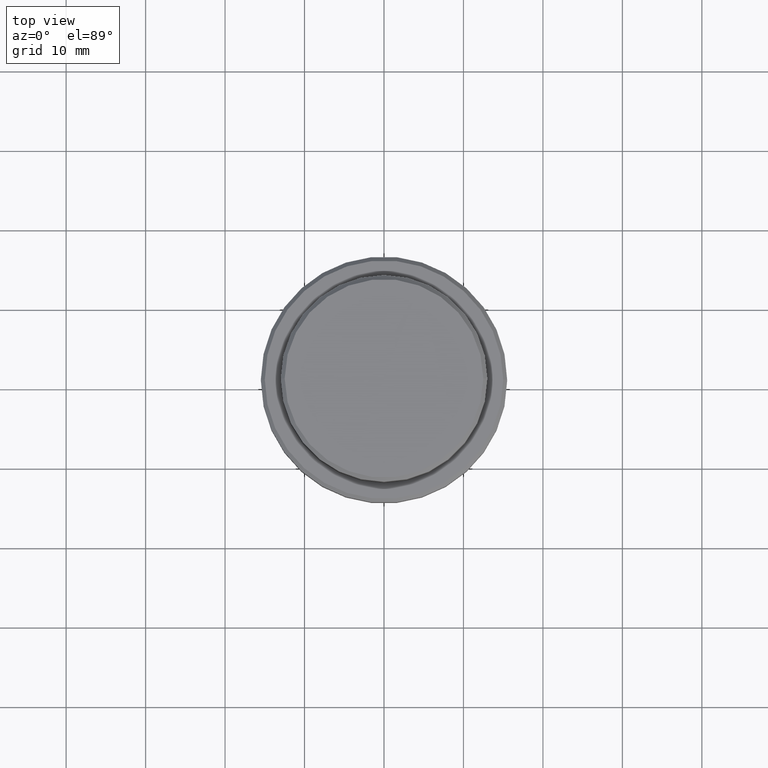
[diagram: clean part render]
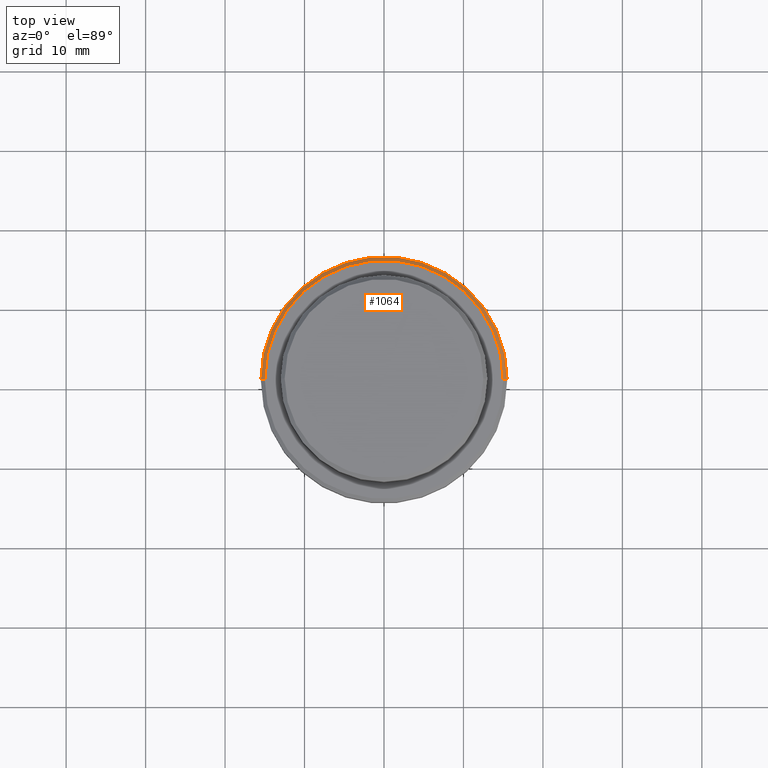
[diagram: same view with one face highlighted and labeled with its STEP entity id]
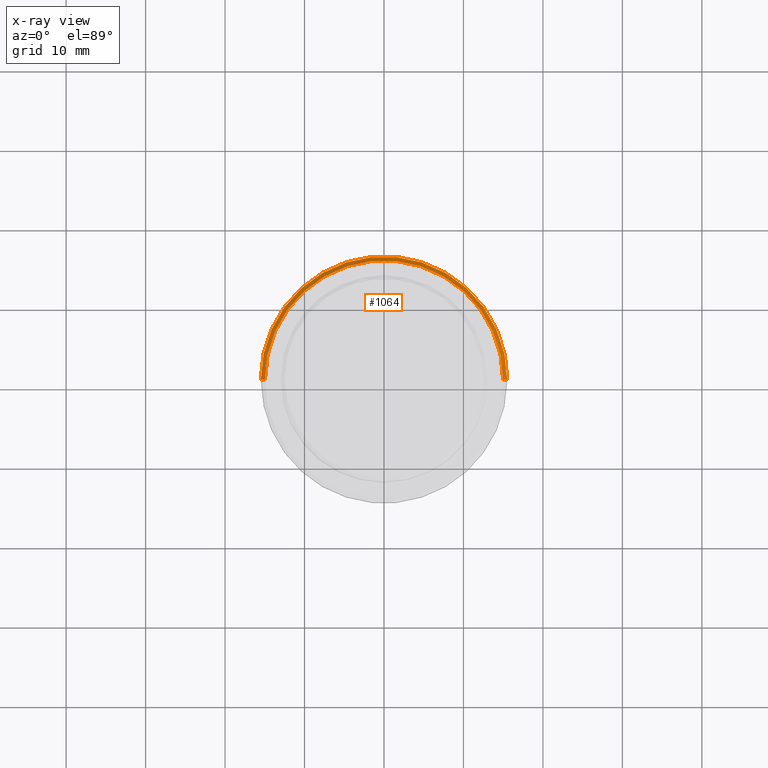
[diagram: x-ray of the same camera — body ghosted, the highlighted face saturated]
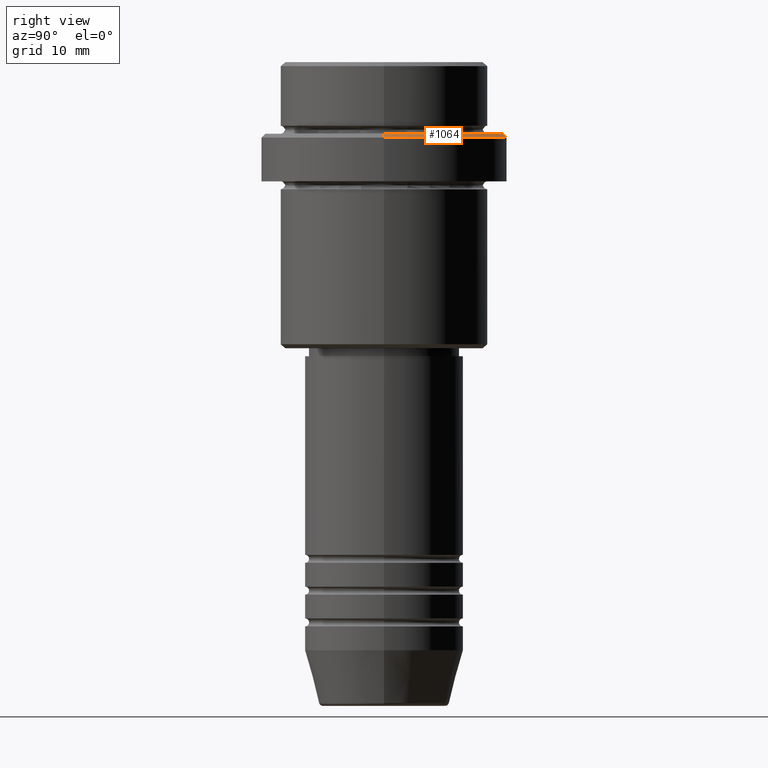
[diagram: same view with one face highlighted and labeled with its STEP entity id]
A machine part, top view. The second image highlights one B-rep face of the part: STEP entity #1064.
The next image is the same camera in x-ray: the body ghosted, the highlighted face saturated — about 0% of this face is hidden behind the body in this view.
A second angle (right view) of the same face is appended — the face is thin or edge-on in the first view.
In plain terms, the highlighted conical surface has half-angle 45 deg.
Its self-contained STEP definition (entity closure, byte-faithful):
#58 = VECTOR ( 'NONE', #741, 1000.000000000000000 ) ;
#65 = DIRECTION ( 'NONE',  ( 1.000000000000000000, 0.000000000000000000, 0.000000000000000000 ) ) ;
#72 = DIRECTION ( 'NONE',  ( 0.000000000000000000, 0.000000000000000000, -1.000000000000000000 ) ) ;
#92 = ORIENTED_EDGE ( 'NONE', *, *, #542, .F. ) ;
#103 = AXIS2_PLACEMENT_3D ( 'NONE', #480, #687, #65 ) ;
#109 = CARTESIAN_POINT ( 'NONE',  ( -14.99999999999998579, 0.000000000000000000, -9.000000000000000000 ) ) ;
#237 = CONICAL_SURFACE ( 'NONE', #1226, 14.99999999999998579, 0.7853981633974500554 ) ;
#238 = EDGE_CURVE ( 'NONE', #317, #1039, #598, .T. ) ;
#254 = CARTESIAN_POINT ( 'NONE',  ( -14.99999999999998579, 0.000000000000000000, -9.000000000000000000 ) ) ;
#271 = CARTESIAN_POINT ( 'NONE',  ( 15.50000000000000000, 0.000000000000000000, -9.500000000000012434 ) ) ;
#312 = EDGE_CURVE ( 'NONE', #408, #1053, #1395, .T. ) ;
#317 = VERTEX_POINT ( 'NONE', #1286 ) ;
#372 = VECTOR ( 'NONE', #491, 1000.000000000000000 ) ;
#408 = VERTEX_POINT ( 'NONE', #254 ) ;
#420 = EDGE_LOOP ( 'NONE', ( #92, #515, #1324, #1107 ) ) ;
#480 = CARTESIAN_POINT ( 'NONE',  ( 0.000000000000000000, 0.000000000000000000, -9.000000000000000000 ) ) ;
#483 = DIRECTION ( 'NONE',  ( 0.000000000000000000, 0.000000000000000000, -1.000000000000000000 ) ) ;
#491 = DIRECTION ( 'NONE',  ( 0.7071067811865487940, 8.659560562354950115E-17, -0.7071067811865463515 ) ) ;
#515 = ORIENTED_EDGE ( 'NONE', *, *, #238, .T. ) ;
#542 = EDGE_CURVE ( 'NONE', #317, #408, #1078, .T. ) ;
#570 = DIRECTION ( 'NONE',  ( 1.000000000000000000, 0.000000000000000000, 0.000000000000000000 ) ) ;
#598 = LINE ( 'NONE', #832, #372 ) ;
#687 = DIRECTION ( 'NONE',  ( -0.000000000000000000, -0.000000000000000000, 1.000000000000000000 ) ) ;
#719 = CARTESIAN_POINT ( 'NONE',  ( -15.50000000000000000, 1.898202538678397557E-15, -9.500000000000012434 ) ) ;
#737 = DIRECTION ( 'NONE',  ( -1.000000000000000000, 0.000000000000000000, 0.000000000000000000 ) ) ;
#741 = DIRECTION ( 'NONE',  ( -0.7071067811865487940, 0.000000000000000000, -0.7071067811865463515 ) ) ;
#807 = CIRCLE ( 'NONE', #875, 15.50000000000000000 ) ;
#832 = CARTESIAN_POINT ( 'NONE',  ( 14.99999999999998579, 1.836970198721028011E-15, -9.000000000000000000 ) ) ;
#875 = AXIS2_PLACEMENT_3D ( 'NONE', #899, #483, #570 ) ;
#899 = CARTESIAN_POINT ( 'NONE',  ( 0.000000000000000000, 0.000000000000000000, -9.500000000000012434 ) ) ;
#926 = CARTESIAN_POINT ( 'NONE',  ( 0.000000000000000000, 0.000000000000000000, -9.000000000000000000 ) ) ;
#1004 = EDGE_CURVE ( 'NONE', #1053, #1039, #807, .T. ) ;
#1039 = VERTEX_POINT ( 'NONE', #271 ) ;
#1053 = VERTEX_POINT ( 'NONE', #719 ) ;
#1064 = ADVANCED_FACE ( 'NONE', ( #1383 ), #237, .T. ) ;
#1078 = CIRCLE ( 'NONE', #103, 14.99999999999998579 ) ;
#1107 = ORIENTED_EDGE ( 'NONE', *, *, #312, .F. ) ;
#1226 = AXIS2_PLACEMENT_3D ( 'NONE', #926, #72, #737 ) ;
#1286 = CARTESIAN_POINT ( 'NONE',  ( 14.99999999999998579, 1.867586368699712587E-15, -9.000000000000000000 ) ) ;
#1324 = ORIENTED_EDGE ( 'NONE', *, *, #1004, .F. ) ;
#1383 = FACE_OUTER_BOUND ( 'NONE', #420, .T. ) ;
#1395 = LINE ( 'NONE', #109, #58 ) ;